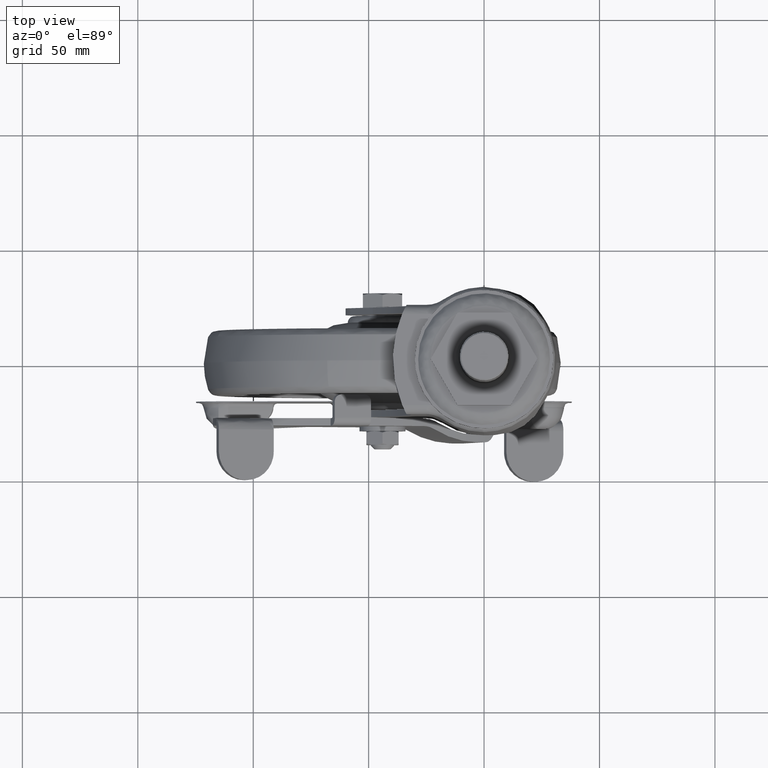
[diagram: clean part render]
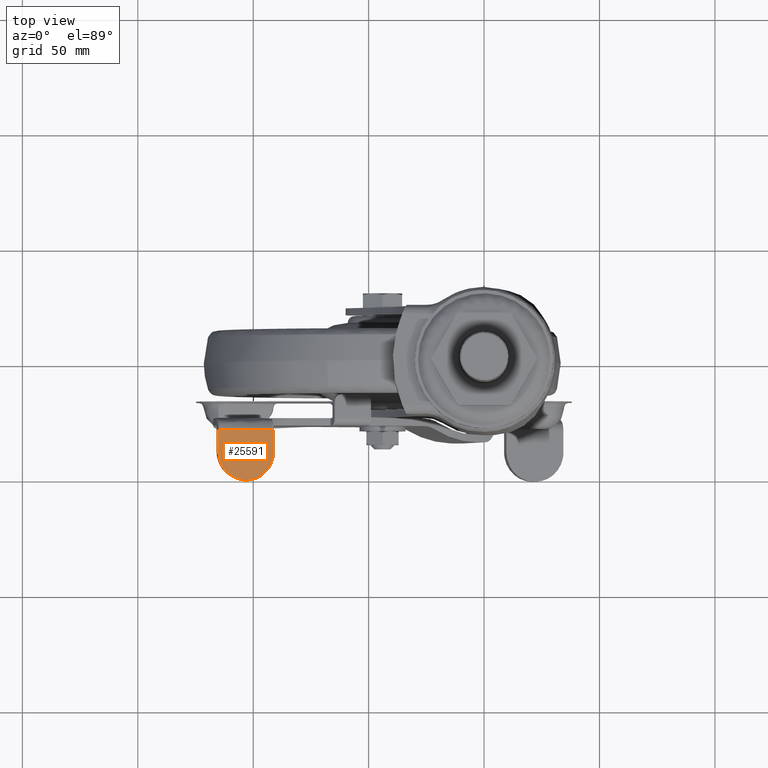
[diagram: same view with one face highlighted and labeled with its STEP entity id]
A machine part, top view. The second image highlights one B-rep face of the part: STEP entity #25591.
In plain terms, the highlighted face is a freeform B-spline surface patch.
Its self-contained STEP definition (entity closure, byte-faithful):
#25495=CARTESIAN_POINT('',(-114.909907000000000,-29.214346000187700,-67.925514904632664));
#25496=VERTEX_POINT('',#25495);
#25519=CARTESIAN_POINT('',(-114.909907000000000,-38.814340000187897,-67.925514904632664));
#25520=VERTEX_POINT('',#25519);
#25526=CARTESIAN_POINT('',(-114.909907000000000,-38.814340000187897,-67.925514904632664));
#25527=CARTESIAN_POINT('',(-114.909907000000000,-29.214346000187700,-67.925514904632664));
#25528=QUASI_UNIFORM_CURVE('',1,(#25526,#25527),.UNSPECIFIED.,.F.,.U.);
#25529=EDGE_CURVE('',#25520,#25496,#25528,.T.);
#25534=CARTESIAN_POINT('',(-89.951225361323310,-52.313239657847660,-76.053342681778588));
#25535=CARTESIAN_POINT('',(-116.097284276272700,-52.313239657847660,-67.538843919852511));
#25536=CARTESIAN_POINT('',(-89.951225361323310,-28.115445752442120,-76.053342681778588));
#25537=CARTESIAN_POINT('',(-116.097284276272700,-28.115445752442120,-67.538843919852511));
#25538=B_SPLINE_SURFACE_WITH_KNOTS('',1,1,((#25534,#25536),(#25535,#25537)),.UNSPECIFIED.,.F.,.F.,.U.,(2,2),(2,2),(0.0,27.497510540971611),(0.0,24.197793905405540),.UNSPECIFIED.);
#25539=CARTESIAN_POINT('',(-91.138601999999906,-38.814340000187897,-75.666671904632466));
#25540=VERTEX_POINT('',#25539);
#25541=CARTESIAN_POINT('',(-91.138601999999906,-29.214346000187700,-75.666671904632466));
#25542=VERTEX_POINT('',#25541);
#25543=CARTESIAN_POINT('',(-91.138601999999906,-38.814340000187897,-75.666671904632466));
#25544=CARTESIAN_POINT('',(-91.138601999999906,-29.214346000187700,-75.666671904632466));
#25545=QUASI_UNIFORM_CURVE('',1,(#25543,#25544),.UNSPECIFIED.,.F.,.U.);
#25546=EDGE_CURVE('',#25540,#25542,#25545,.T.);
#25547=ORIENTED_EDGE('',*,*,#25546,.T.);
#25548=CARTESIAN_POINT('',(-91.138601999999906,-29.214346000187700,-75.666671904632466));
#25549=CARTESIAN_POINT('',(-114.909907000000000,-29.214346000187700,-67.925514904632664));
#25550=QUASI_UNIFORM_CURVE('',1,(#25548,#25549),.UNSPECIFIED.,.F.,.U.);
#25551=EDGE_CURVE('',#25542,#25496,#25550,.T.);
#25552=ORIENTED_EDGE('',*,*,#25551,.T.);
#25553=ORIENTED_EDGE('',*,*,#25529,.F.);
#25554=CARTESIAN_POINT('',(-103.119343993808600,-51.214340000187903,-71.765127384861174));
#25555=VERTEX_POINT('',#25554);
#25556=CARTESIAN_POINT('',(-114.909907000000000,-38.814340000187897,-67.925514904632735));
#25557=CARTESIAN_POINT('',(-114.909906999999990,-51.214340000187903,-67.925514904632735));
#25558=CARTESIAN_POINT('',(-103.119343993808600,-51.214340000187903,-71.765127384861174));
#25566=(BOUNDED_CURVE()B_SPLINE_CURVE(2,(#25556,#25557,#25558),.UNSPECIFIED.,.F.,.U.)CURVE()GEOMETRIC_REPRESENTATION_ITEM()QUASI_UNIFORM_CURVE()RATIONAL_B_SPLINE_CURVE((1.0,0.707106781186547,1.0))REPRESENTATION_ITEM(''));
#25567=EDGE_CURVE('',#25520,#25555,#25566,.T.);
#25568=ORIENTED_EDGE('',*,*,#25567,.T.);
#25569=CARTESIAN_POINT('',(-102.929165006143410,-51.214340000187903,-71.827059424419673));
#25570=VERTEX_POINT('',#25569);
#25571=CARTESIAN_POINT('',(-102.929165006143410,-51.214340000187903,-71.827059424419673));
#25572=CARTESIAN_POINT('',(-103.119343993808600,-51.214340000187903,-71.765127384861174));
#25573=QUASI_UNIFORM_CURVE('',1,(#25571,#25572),.UNSPECIFIED.,.F.,.U.);
#25574=EDGE_CURVE('',#25570,#25555,#25573,.T.);
#25575=ORIENTED_EDGE('',*,*,#25574,.F.);
#25576=CARTESIAN_POINT('',(-102.929165006143410,-51.214340000187903,-71.827059424419673));
#25577=CARTESIAN_POINT('',(-91.138602000001683,-51.214340000187903,-75.666671904631940));
#25578=CARTESIAN_POINT('',(-91.138602000001669,-38.814340000187897,-75.666671904631954));
#25586=(BOUNDED_CURVE()B_SPLINE_CURVE(2,(#25576,#25577,#25578),.UNSPECIFIED.,.F.,.U.)CURVE()GEOMETRIC_REPRESENTATION_ITEM()QUASI_UNIFORM_CURVE()RATIONAL_B_SPLINE_CURVE((1.0,0.707106781186547,1.0))REPRESENTATION_ITEM(''));
#25587=EDGE_CURVE('',#25570,#25540,#25586,.T.);
#25588=ORIENTED_EDGE('',*,*,#25587,.T.);
#25589=EDGE_LOOP('',(#25547,#25552,#25553,#25568,#25575,#25588));
#25590=FACE_OUTER_BOUND('',#25589,.T.);
#25591=ADVANCED_FACE('',(#25590),#25538,.F.);